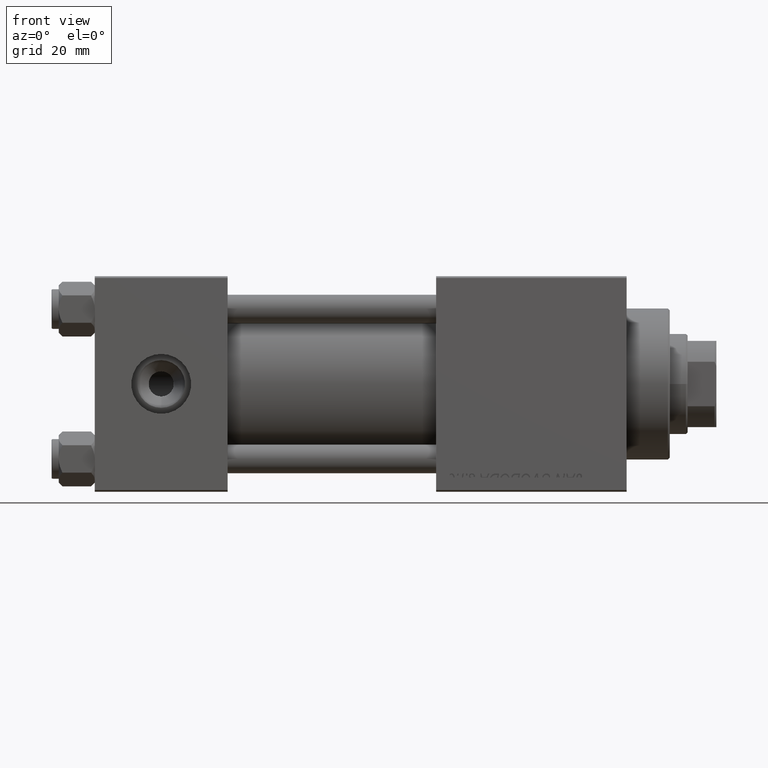
[diagram: clean part render]
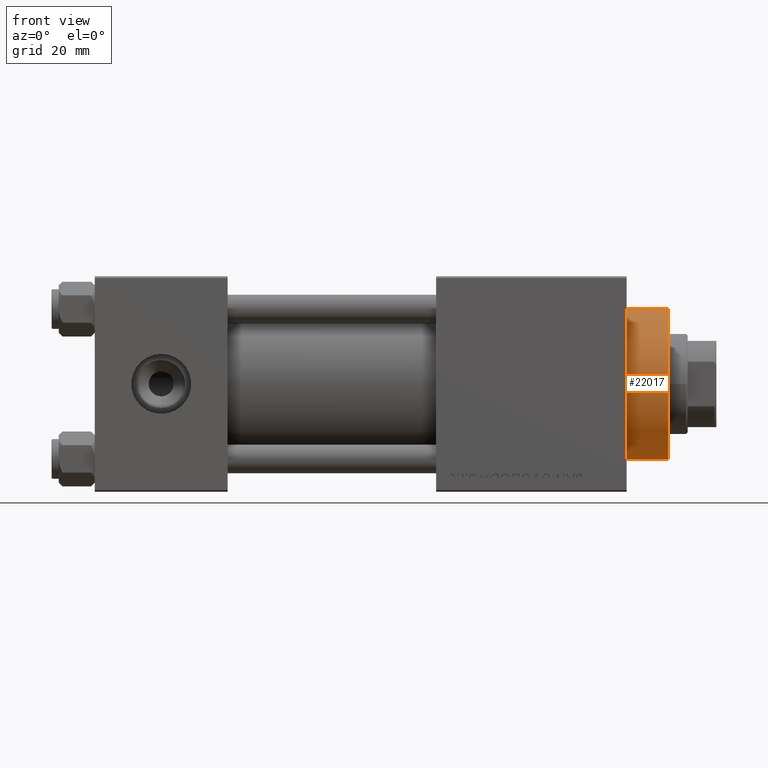
[diagram: same view with one face highlighted and labeled with its STEP entity id]
A machine part, front view. The second image highlights one B-rep face of the part: STEP entity #22017.
In plain terms, the highlighted cylindrical surface (partial cylindrical patch) has radius 21 mm, axis along (-1, -0, -0).
Its self-contained STEP definition (entity closure, byte-faithful):
#1364 = AXIS2_PLACEMENT_3D ( 'NONE', #12626, #5510, #9566 ) ;
#1580 = EDGE_LOOP ( 'NONE', ( #24537, #5677, #14714, #13493 ) ) ;
#1935 = CIRCLE ( 'NONE', #32712, 21.00000000000000000 ) ;
#3304 = CARTESIAN_POINT ( 'NONE',  ( 21.00000000000000000, 2.571758278209441661E-15, 40.70000000000000284 ) ) ;
#4893 = DIRECTION ( 'NONE',  ( 1.000000000000000000, 0.000000000000000000, 0.000000000000000000 ) ) ;
#5510 = DIRECTION ( 'NONE',  ( -0.000000000000000000, -0.000000000000000000, -1.000000000000000000 ) ) ;
#5596 = LINE ( 'NONE', #17997, #14031 ) ;
#5677 = ORIENTED_EDGE ( 'NONE', *, *, #49665, .T. ) ;
#7797 = CARTESIAN_POINT ( 'NONE',  ( -21.00000000000000000, 0.000000000000000000, 40.19999999999998863 ) ) ;
#9316 = EDGE_CURVE ( 'NONE', #30915, #40553, #26401, .T. ) ;
#9566 = DIRECTION ( 'NONE',  ( -1.000000000000000000, 0.000000000000000000, 0.000000000000000000 ) ) ;
#9929 = EDGE_CURVE ( 'NONE', #10253, #40553, #28686, .T. ) ;
#10253 = VERTEX_POINT ( 'NONE', #20885 ) ;
#12367 = FACE_OUTER_BOUND ( 'NONE', #1580, .T. ) ;
#12626 = CARTESIAN_POINT ( 'NONE',  ( 0.000000000000000000, 0.000000000000000000, 40.70000000000000284 ) ) ;
#13493 = ORIENTED_EDGE ( 'NONE', *, *, #9929, .T. ) ;
#14031 = VECTOR ( 'NONE', #25364, 1000.000000000000000 ) ;
#14714 = ORIENTED_EDGE ( 'NONE', *, *, #47541, .T. ) ;
#14938 = AXIS2_PLACEMENT_3D ( 'NONE', #20198, #38997, #35681 ) ;
#15470 = CARTESIAN_POINT ( 'NONE',  ( 21.00000000000000000, 2.571758278209441661E-15, 28.69999999999999929 ) ) ;
#15721 = DIRECTION ( 'NONE',  ( -0.000000000000000000, -0.000000000000000000, -1.000000000000000000 ) ) ;
#17997 = CARTESIAN_POINT ( 'NONE',  ( -21.00000000000000000, 0.000000000000000000, 40.70000000000000284 ) ) ;
#20198 = CARTESIAN_POINT ( 'NONE',  ( 0.000000000000000000, 0.000000000000000000, 28.69999999999999929 ) ) ;
#20355 = CARTESIAN_POINT ( 'NONE',  ( 0.000000000000000000, 0.000000000000000000, 40.19999999999998863 ) ) ;
#20885 = CARTESIAN_POINT ( 'NONE',  ( -21.00000000000000000, 0.000000000000000000, 28.69999999999999929 ) ) ;
#22017 = ADVANCED_FACE ( 'NONE', ( #12367 ), #44342, .T. ) ;
#24537 = ORIENTED_EDGE ( 'NONE', *, *, #9316, .F. ) ;
#25364 = DIRECTION ( 'NONE',  ( -0.000000000000000000, -0.000000000000000000, -1.000000000000000000 ) ) ;
#26401 = LINE ( 'NONE', #3304, #42436 ) ;
#28686 = CIRCLE ( 'NONE', #14938, 21.00000000000000000 ) ;
#30915 = VERTEX_POINT ( 'NONE', #40314 ) ;
#32712 = AXIS2_PLACEMENT_3D ( 'NONE', #20355, #39650, #4893 ) ;
#35681 = DIRECTION ( 'NONE',  ( 1.000000000000000000, 0.000000000000000000, 0.000000000000000000 ) ) ;
#38997 = DIRECTION ( 'NONE',  ( 0.000000000000000000, 0.000000000000000000, 1.000000000000000000 ) ) ;
#39650 = DIRECTION ( 'NONE',  ( 0.000000000000000000, 0.000000000000000000, -1.000000000000000000 ) ) ;
#40314 = CARTESIAN_POINT ( 'NONE',  ( 21.00000000000000000, 2.571758278209441661E-15, 40.19999999999998863 ) ) ;
#40553 = VERTEX_POINT ( 'NONE', #15470 ) ;
#42301 = VERTEX_POINT ( 'NONE', #7797 ) ;
#42436 = VECTOR ( 'NONE', #15721, 1000.000000000000000 ) ;
#44342 = CYLINDRICAL_SURFACE ( 'NONE', #1364, 21.00000000000000000 ) ;
#47541 = EDGE_CURVE ( 'NONE', #42301, #10253, #5596, .T. ) ;
#49665 = EDGE_CURVE ( 'NONE', #30915, #42301, #1935, .T. ) ;